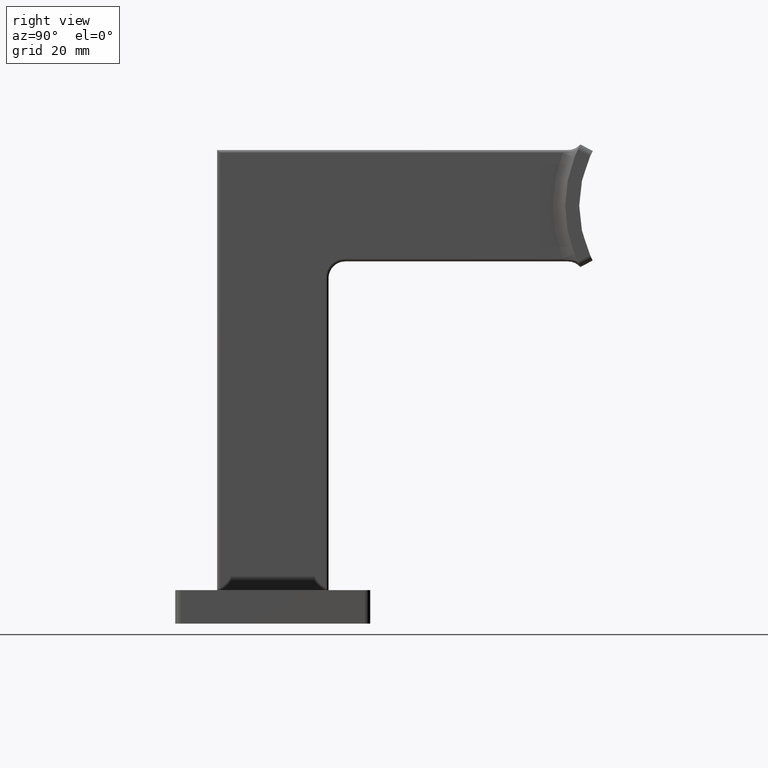
[diagram: clean part render]
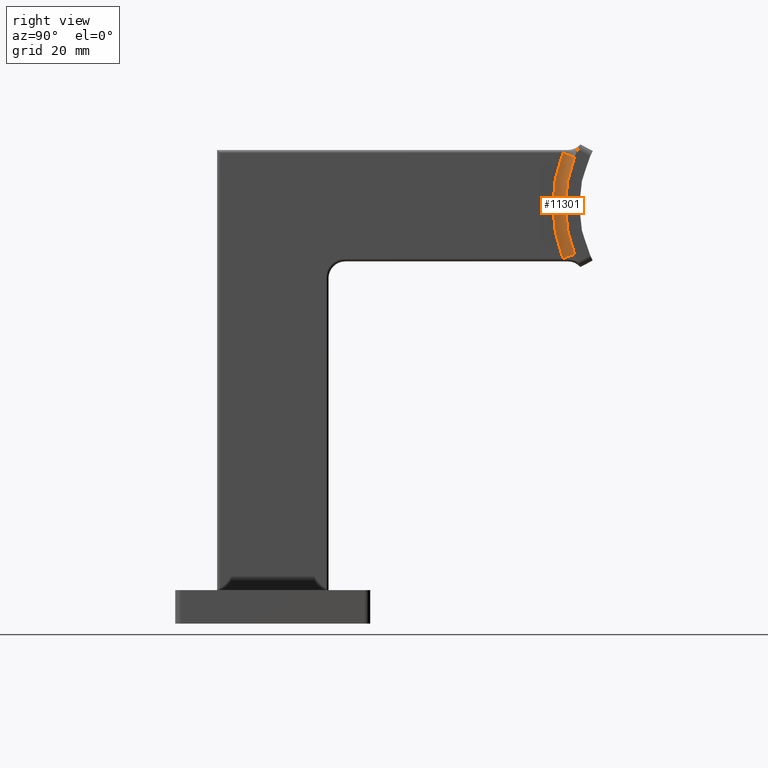
[diagram: same view with one face highlighted and labeled with its STEP entity id]
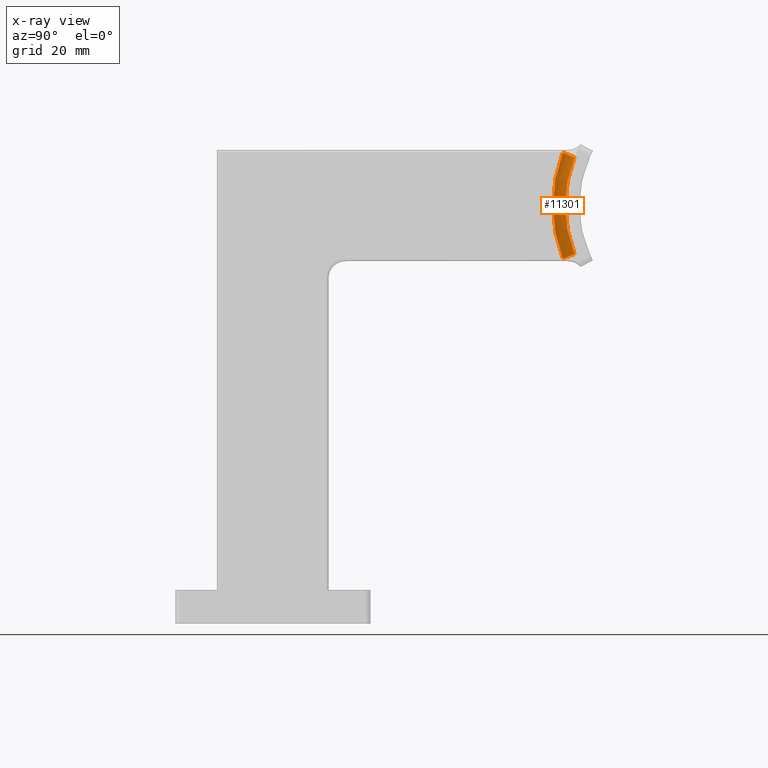
[diagram: x-ray of the same camera — body ghosted, the highlighted face saturated]
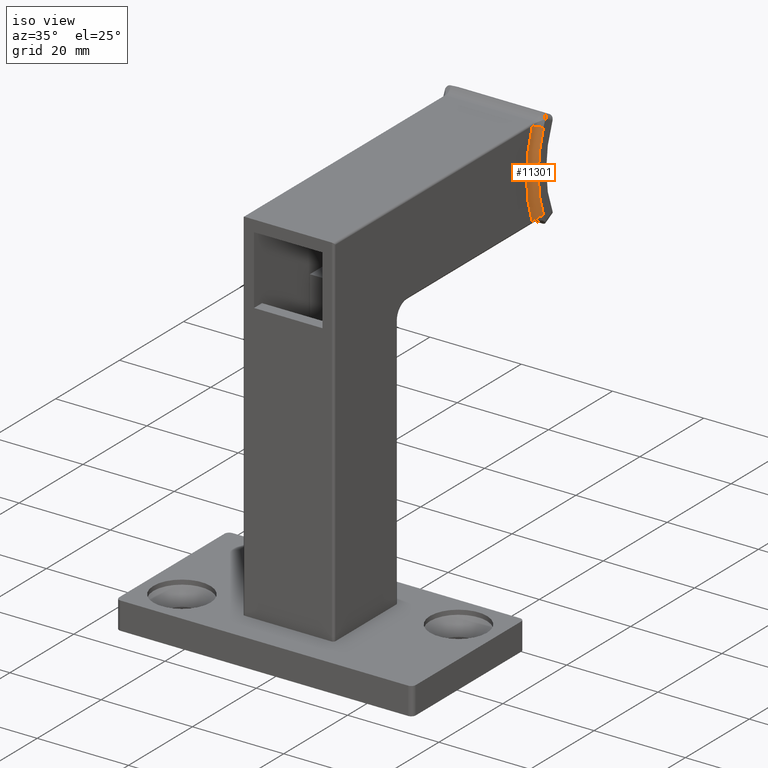
[diagram: same view with one face highlighted and labeled with its STEP entity id]
A machine part, right view. The second image highlights one B-rep face of the part: STEP entity #11301.
The next image is the same camera in x-ray: the body ghosted, the highlighted face saturated — about 0% of this face is hidden behind the body in this view.
A second angle (iso view) of the same face is appended — the face is thin or edge-on in the first view.
In plain terms, the highlighted toroidal blend (fillet) surface has major radius 25.9361 mm and minor (blend) radius 3 mm.
Its self-contained STEP definition (entity closure, byte-faithful):
#89 = ORIENTED_EDGE ( 'NONE', *, *, #9132, .T. ) ;
#735 = CARTESIAN_POINT ( 'NONE',  ( 12.99999999999999822, 52.06642127380421670, 84.49999999999998579 ) ) ;
#889 = AXIS2_PLACEMENT_3D ( 'NONE', #4601, #14658, #11228 ) ;
#1162 = CIRCLE ( 'NONE', #9909, 3.000000000000002220 ) ;
#1652 = EDGE_CURVE ( 'NONE', #14210, #10215, #9954, .T. ) ;
#1657 = DIRECTION ( 'NONE',  ( 1.000000000000000000, 0.000000000000000000, 0.000000000000000000 ) ) ;
#1720 = CIRCLE ( 'NONE', #889, 25.93606797749978199 ) ;
#2047 = DIRECTION ( 'NONE',  ( 0.000000000000000000, 0.9305026015174043819, 0.3662852830367914203 ) ) ;
#2178 = DIRECTION ( 'NONE',  ( -1.000000000000000000, 0.000000000000000000, -1.734723475976807587E-16 ) ) ;
#3183 = FACE_OUTER_BOUND ( 'NONE', #6221, .T. ) ;
#4005 = DIRECTION ( 'NONE',  ( -0.000000000000000000, -0.3662852830367935297, -0.9305026015174038267 ) ) ;
#4292 = CARTESIAN_POINT ( 'NONE',  ( 11.00000000000000000, 54.14708834403752746, 66.31903879202802443 ) ) ;
#4420 = CARTESIAN_POINT ( 'NONE',  ( 13.00000000000000000, 76.20000000000000284, 75.00000000000000000 ) ) ;
#4601 = CARTESIAN_POINT ( 'NONE',  ( 10.00000000000000000, 76.20000000000000284, 75.00000000000000000 ) ) ;
#5223 = DIRECTION ( 'NONE',  ( 0.000000000000000000, 0.9305026015174043819, -0.3662852830367914203 ) ) ;
#5421 = CARTESIAN_POINT ( 'NONE',  ( 11.00000000000000000, 54.14708834403752746, 83.68096120797197557 ) ) ;
#5532 = EDGE_CURVE ( 'NONE', #8696, #14210, #1162, .T. ) ;
#5547 = DIRECTION ( 'NONE',  ( -0.000000000000000000, 0.3662852830367930301, -0.9305026015174038267 ) ) ;
#5707 = DIRECTION ( 'NONE',  ( -1.734723475976807587E-16, 0.000000000000000000, 1.000000000000000000 ) ) ;
#6221 = EDGE_LOOP ( 'NONE', ( #89, #10106, #13667, #11939 ) ) ;
#6334 = AXIS2_PLACEMENT_3D ( 'NONE', #12447, #5547, #2047 ) ;
#6459 = CIRCLE ( 'NONE', #6334, 3.000000000000002220 ) ;
#7692 = CARTESIAN_POINT ( 'NONE',  ( 10.00000000000000178, 52.06642127380421670, 65.50000000000000000 ) ) ;
#8696 = VERTEX_POINT ( 'NONE', #14480 ) ;
#8714 = DIRECTION ( 'NONE',  ( 0.000000000000000000, 0.000000000000000000, -1.000000000000000000 ) ) ;
#9132 = EDGE_CURVE ( 'NONE', #10269, #10215, #6459, .T. ) ;
#9909 = AXIS2_PLACEMENT_3D ( 'NONE', #735, #4005, #5223 ) ;
#9954 = CIRCLE ( 'NONE', #14785, 23.69999999999999218 ) ;
#10106 = ORIENTED_EDGE ( 'NONE', *, *, #1652, .F. ) ;
#10215 = VERTEX_POINT ( 'NONE', #4292 ) ;
#10255 = EDGE_CURVE ( 'NONE', #10269, #8696, #1720, .T. ) ;
#10269 = VERTEX_POINT ( 'NONE', #7692 ) ;
#10951 = CARTESIAN_POINT ( 'NONE',  ( 11.00000000000000000, 76.20000000000000284, 75.00000000000000000 ) ) ;
#11228 = DIRECTION ( 'NONE',  ( -2.006537934911789759E-16, 0.000000000000000000, 1.000000000000000000 ) ) ;
#11270 = TOROIDAL_SURFACE ( 'NONE', #14153, 25.93606797749978199, 3.000000000000000000 ) ;
#11301 = ADVANCED_FACE ( 'NONE', ( #3183 ), #11270, .F. ) ;
#11939 = ORIENTED_EDGE ( 'NONE', *, *, #10255, .F. ) ;
#12447 = CARTESIAN_POINT ( 'NONE',  ( 13.00000000000000178, 52.06642127380421670, 65.50000000000000000 ) ) ;
#13667 = ORIENTED_EDGE ( 'NONE', *, *, #5532, .F. ) ;
#14153 = AXIS2_PLACEMENT_3D ( 'NONE', #4420, #2178, #5707 ) ;
#14210 = VERTEX_POINT ( 'NONE', #5421 ) ;
#14480 = CARTESIAN_POINT ( 'NONE',  ( 9.999999999999998224, 52.06642127380421670, 84.49999999999998579 ) ) ;
#14658 = DIRECTION ( 'NONE',  ( -1.000000000000000000, 0.000000000000000000, -1.734723475976807587E-16 ) ) ;
#14785 = AXIS2_PLACEMENT_3D ( 'NONE', #10951, #1657, #8714 ) ;